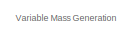
[diagram: root canvas - part 1/2, top left region]
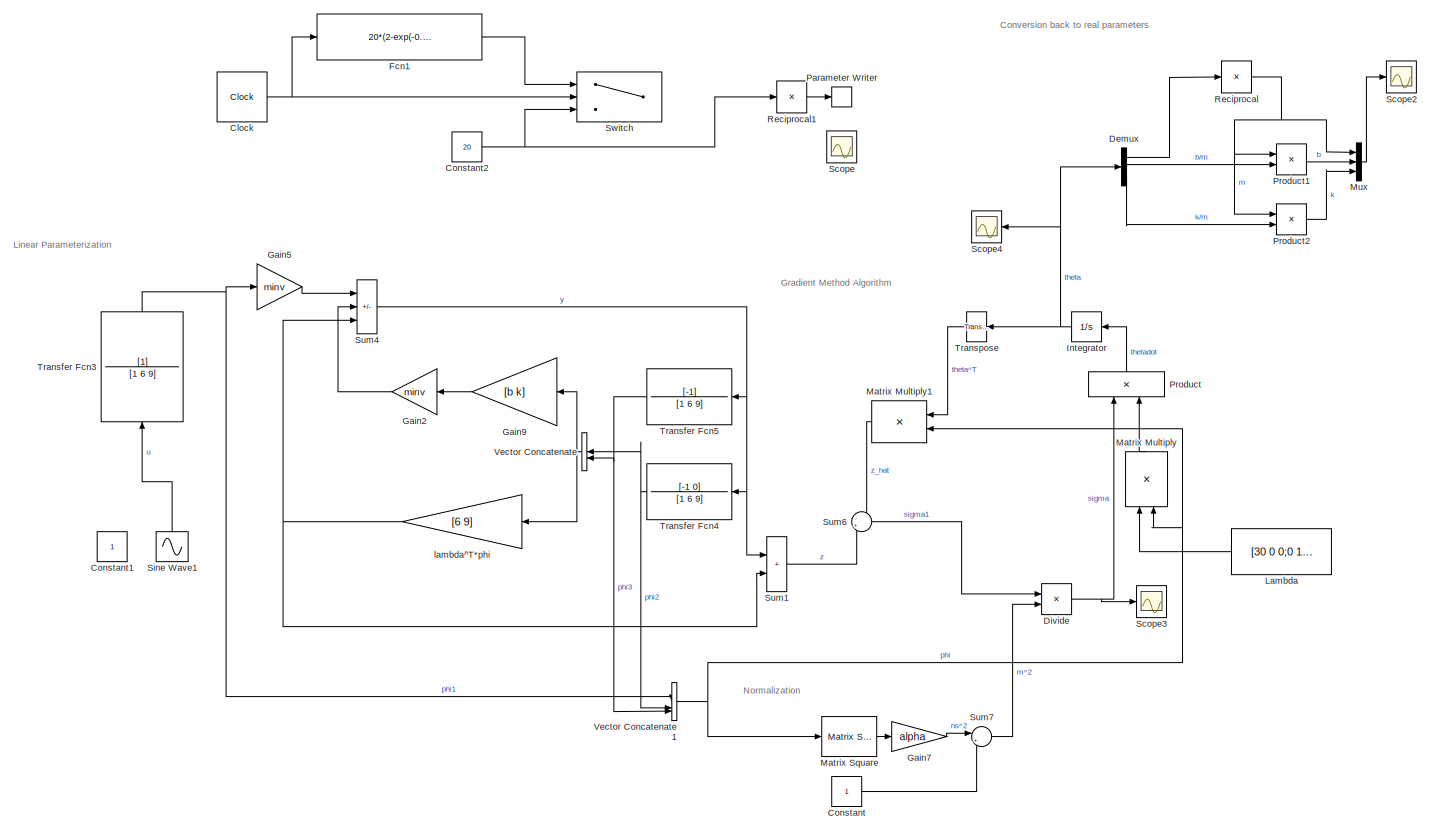
[diagram: root canvas - part 2/2, most of the canvas]
MODEL slx_9ae96a985f7e
KIND model
CONFIG AbsTol = auto
CONFIG EnableMultiTasking = off
CONFIG FixedStep = auto
CONFIG MaxStep = auto
CONFIG MinStep = auto
CONFIG RelTol = 1e-3
CONFIG SampleTimeConstraint = Unconstrained
CONFIG SolverName = VariableStepAuto
CONFIG StartTime = 0.0
CONFIG StopTime = 100
WORKSPACE source: mxarray member
WORKSPACE alpha: Simulink.Parameter (value not decoded)
WORKSPACE b: Simulink.Parameter (value not decoded)
WORKSPACE k: Simulink.Parameter (value not decoded)
WORKSPACE m: Simulink.Parameter (value not decoded)
WORKSPACE minv: Simulink.Parameter (value not decoded)
BLOCK [Clock] Clock
  DisplayTime = on
BLOCK [Constant] Constant
BLOCK [Constant] Constant1
  NameLocation = right
BLOCK [Constant] Constant2
  Value = 20
BLOCK [Demux] Demux
  Outputs = 3
BLOCK [Product] Divide
  Inputs = */
BLOCK [Fcn] Fcn1
  Expr = 20*(2-exp(-0.01*(u-20)))
BLOCK [Gain] Gain2
  Gain = minv
BLOCK [Gain] Gain5
  Gain = minv
BLOCK [Gain] Gain7
  Gain = alpha
BLOCK [Gain] Gain9
  Gain = [b k]
  Multiplication = Matrix(K*u)
BLOCK [Integrator] Integrator
  InitialCondition = [0.1 0.1 0.3]
BLOCK [Constant] Lambda
  Value = [30 0 0;0 1000 0; 0 0 300]
BLOCK [Product] Matrix Multiply
  Multiplication = Matrix(*)
  NameLocation = right
BLOCK [Product] Matrix Multiply1
  Multiplication = Matrix(*)
BLOCK [Reference] Matrix Square  REF=matrix_library/Matrix
Square
  LibrarySourceBlock = simulink/Matrix\nOperations/Matrix\nSquare
  SourceBlock = matrix_library/Matrix\nSquare
  SourceType = Matrix Square
BLOCK [Mux] Mux
  DisplayOption = bar
  Inputs = 3
BLOCK [ParameterWriter] Parameter Writer
  AccessWorkspaceVariable = on
  WorkspaceVariableName = minv
BLOCK [Product] Product
  NameLocation = left
BLOCK [Product] Product1
BLOCK [Product] Product2
BLOCK [Product] Reciprocal
  Inputs = /
  OutMax = [10000]
BLOCK [Product] Reciprocal1
  Inputs = /
BLOCK [Scope] Scope
  Floating = off
  NumInputPorts = 1
  ScopeSpecificationString = Simulink.scopes.TimeScopeBlockCfg('CurrentConfiguration', extmgr.ConfigurationSet(extmgr.Configuration('Core','General UI',true),extmgr.Configuration('Core','Source UI',true),extmgr.Configuration('Sources','WiredSimulink',true,'DataLoggingVariableName','ScopeData1'),extmgr.Configuration('Visuals','Time Domain',true,'SerializedDisplays',{struct('MinYLimReal','-1.00000','MaxYLimReal','1.00000','YLab...<+1432ch>
BLOCK [Scope] Scope2
  Floating = off
  NumInputPorts = 1
  ScopeSpecificationString = Simulink.scopes.TimeScopeBlockCfg('CurrentConfiguration', extmgr.ConfigurationSet(extmgr.Configuration('Core','General UI',true),extmgr.Configuration('Core','Source UI',true),extmgr.Configuration('Sources','WiredSimulink',true,'DataLoggingVariableName','ScopeData2'),extmgr.Configuration('Visuals','Time Domain',true,'SerializedDisplays',{struct('MinYLimReal','-3.12172','MaxYLimReal','23.94635','YLa...<+1758ch>
BLOCK [Scope] Scope3
  Floating = off
  NumInputPorts = 1
  ScopeSpecificationString = Simulink.scopes.TimeScopeBlockCfg('CurrentConfiguration', extmgr.ConfigurationSet(extmgr.Configuration('Core','General UI',true),extmgr.Configuration('Core','Source UI',true),extmgr.Configuration('Sources','WiredSimulink',true,'DataLoggingVariableName','ScopeData3'),extmgr.Configuration('Visuals','Time Domain',true,'SerializedDisplays',{struct('MinYLimReal','-0.00435','MaxYLimReal','0.00405','YLab...<+1364ch>
BLOCK [Scope] Scope4
  Floating = off
  NumInputPorts = 1
  ScopeSpecificationString = Simulink.scopes.TimeScopeBlockCfg('CurrentConfiguration', extmgr.ConfigurationSet(extmgr.Configuration('Core','General UI',true),extmgr.Configuration('Core','Source UI',true),extmgr.Configuration('Sources','WiredSimulink',true,'DataLoggingVariableName','ScopeData4'),extmgr.Configuration('Visuals','Time Domain',true,'SerializedDisplays',{struct('MinYLimReal','-0.03059','MaxYLimReal','0.34225','YLab...<+1470ch>
BLOCK [Sin] Sine Wave1
  Amplitude = 3
  NameLocation = right
  SampleTime = 0
BLOCK [Sum] Sum1
  IconShape = rectangular
BLOCK [Sum] Sum4
  IconShape = rectangular
  Inputs = ++-
BLOCK [Sum] Sum6
  Inputs = -+
BLOCK [Sum] Sum7
  Inputs = |++
BLOCK [Switch] Switch
  InputSameDT = off
  SaturateOnIntegerOverflow = off
  Threshold = 20
  ZeroCross = off
BLOCK [TransferFcn] Transfer Fcn3
  Denominator = [1 6 9]
  NameLocation = right
BLOCK [TransferFcn] Transfer Fcn4
  Denominator = [1 6 9]
  Numerator = [-1 0]
BLOCK [TransferFcn] Transfer Fcn5
  Denominator = [1 6 9]
  Numerator = [-1]
BLOCK [Reference] Transpose  REF=matrix_library/Transpose
  LibrarySourceBlock = simulink/Matrix\nOperations/Transpose
  SourceBlock = matrix_library/Transpose
  SourceType = Transpose
BLOCK [Concatenate] Vector Concatenate
BLOCK [Concatenate] Vector Concatenate1
  NumInputs = 3
BLOCK [Gain] lambda^T*phi
  AttributesFormatString = It's not clear to me whether the inclusion of this\nlambda*phi_2_3 term is necessary,\nbut i get better performance when it is included!\nThis comes from the linear parameterization derivation in the book
  Gain = [6 9]
  Multiplication = Matrix(K*u)
ANNOTATION (root): Conversion back to real parameters
ANNOTATION (root): Gradient Method Algorithm
ANNOTATION (root): Linear Parameterization
ANNOTATION (root): Normalization
ANNOTATION (root): Variable Mass Generation
NET Clock:1 -> Fcn1:1, Switch:2
NET Constant2:1 -> Reciprocal1:1, Switch:3
LINE Constant:1 -> Sum7:2
LINE Demux:1 -> Reciprocal:1
LINE Demux:2 -> Product1:2
LINE Demux:3 -> Product2:2
NET Divide:1 -> Product:1, Scope3:1
LINE Fcn1:1 -> Switch:1
LINE Gain2:1 -> Sum4:2
LINE Gain5:1 -> Sum4:1
LINE Gain7:1 -> Sum7:1
LINE Gain9:1 -> Gain2:1
NET Integrator:1 -> Demux:1, Scope4:1, Transpose:1
LINE Lambda:1 -> Matrix Multiply:1
LINE Matrix Multiply1:1 -> Sum6:1
LINE Matrix Multiply:1 -> Product:2
LINE Matrix Square:1 -> Gain7:1
LINE Mux:1 -> Scope2:1
LINE Product1:1 -> Mux:2
LINE Product2:1 -> Mux:3
LINE Product:1 -> Integrator:1
LINE Reciprocal1:1 -> Parameter Writer:1
NET Reciprocal:1 -> Mux:1, Product1:1, Product2:1
LINE Sine Wave1:1 -> Transfer Fcn3:1
LINE Sum1:1 -> Sum6:2
NET Sum4:1 -> Sum1:1, Transfer Fcn4:1, Transfer Fcn5:1
LINE Sum6:1 -> Divide:1
LINE Sum7:1 -> Divide:2
NET Transfer Fcn3:1 -> Gain5:1, Vector Concatenate1:1
NET Transfer Fcn4:1 -> Vector Concatenate1:2, Vector Concatenate:1
NET Transfer Fcn5:1 -> Vector Concatenate1:3, Vector Concatenate:2
LINE Transpose:1 -> Matrix Multiply1:1
NET Vector Concatenate1:1 -> Matrix Multiply1:2, Matrix Multiply:2, Matrix Square:1
NET Vector Concatenate:1 -> Gain9:1, lambda^T*phi:1
NET lambda^T*phi:1 -> Sum1:2, Sum4:3
note: NET lines group one-source signal fan-out (src -> all destinations, sorted); 1:1 wires keep LINE
